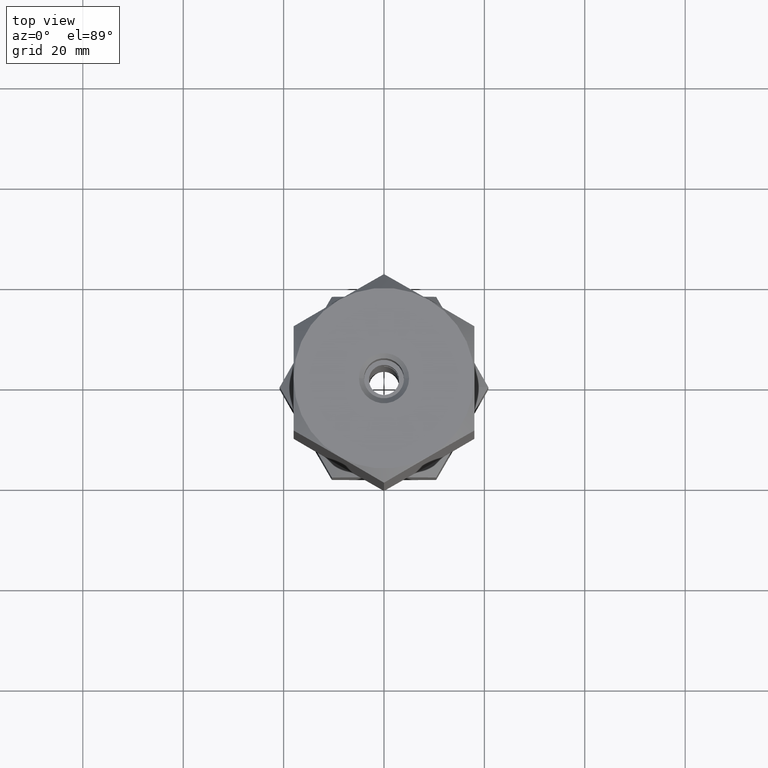
[diagram: clean part render]
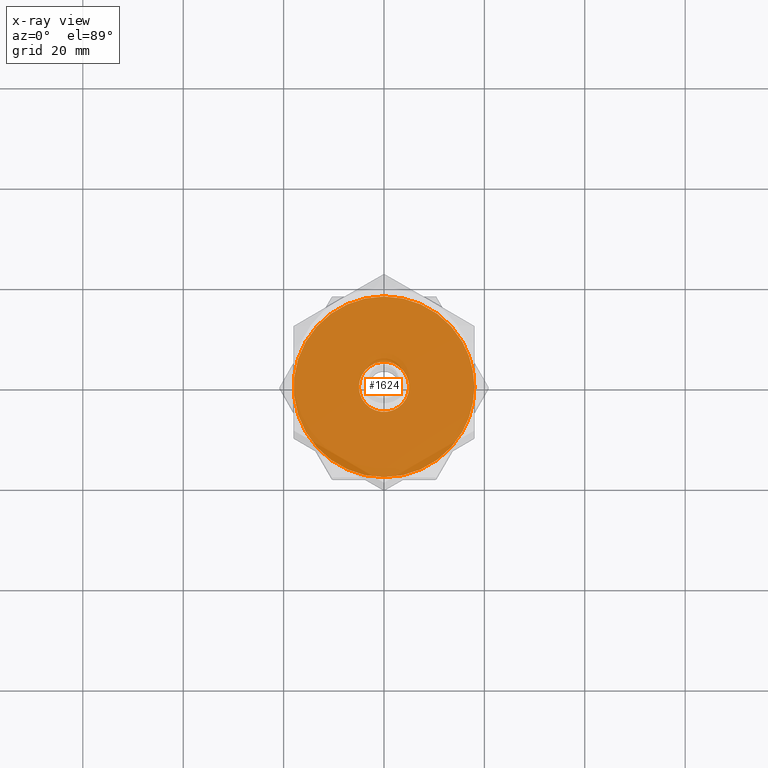
[diagram: x-ray — body ghosted, one internal face saturated and labeled with its STEP entity id]
A machine part, top view, then the same camera in x-ray: the body is ghosted and one INTERNAL B-rep face — a face not visible from any outside direction — is saturated and labeled: STEP entity #1624.
In plain terms, the highlighted planar face has unit normal (0, 0, 1).
Its self-contained STEP definition (entity closure, byte-faithful):
#32 = CIRCLE ( 'NONE', #1539, 18.00000000000000000 ) ;
#37 = AXIS2_PLACEMENT_3D ( 'NONE', #990, #960, #981 ) ;
#67 = AXIS2_PLACEMENT_3D ( 'NONE', #344, #1314, #988 ) ;
#76 = VERTEX_POINT ( 'NONE', #328 ) ;
#141 = DIRECTION ( 'NONE',  ( 0.000000000000000000, 0.000000000000000000, 1.000000000000000000 ) ) ;
#153 = CARTESIAN_POINT ( 'NONE',  ( -15.58845726811989607, 8.999999999999996447, 33.33333333333330017 ) ) ;
#158 = CARTESIAN_POINT ( 'NONE',  ( -5.000000000000000000, 0.000000000000000000, 33.33333333333330017 ) ) ;
#174 = CARTESIAN_POINT ( 'NONE',  ( 5.000000000000000000, 6.123233995736766282E-16, 33.33333333333330017 ) ) ;
#178 = ORIENTED_EDGE ( 'NONE', *, *, #185, .T. ) ;
#181 = CARTESIAN_POINT ( 'NONE',  ( 15.58845726811989429, -9.000000000000001776, 33.33333333333330017 ) ) ;
#185 = EDGE_CURVE ( 'NONE', #1027, #76, #32, .T. ) ;
#190 = EDGE_LOOP ( 'NONE', ( #1840, #1390 ) ) ;
#197 = DIRECTION ( 'NONE',  ( 1.000000000000000000, 0.000000000000000000, 0.000000000000000000 ) ) ;
#277 = DIRECTION ( 'NONE',  ( 1.000000000000000000, 0.000000000000000000, 0.000000000000000000 ) ) ;
#328 = CARTESIAN_POINT ( 'NONE',  ( -15.58845726811989607, -9.000000000000003553, 33.33333333333330017 ) ) ;
#337 = CARTESIAN_POINT ( 'NONE',  ( 0.000000000000000000, 0.000000000000000000, 33.33333333333330017 ) ) ;
#342 = ORIENTED_EDGE ( 'NONE', *, *, #1935, .T. ) ;
#344 = CARTESIAN_POINT ( 'NONE',  ( 0.000000000000000000, 0.000000000000000000, 33.33333333333330017 ) ) ;
#350 = ORIENTED_EDGE ( 'NONE', *, *, #1779, .T. ) ;
#351 = DIRECTION ( 'NONE',  ( 0.000000000000000000, 0.000000000000000000, 1.000000000000000000 ) ) ;
#401 = CARTESIAN_POINT ( 'NONE',  ( 0.000000000000000000, 0.000000000000000000, 33.33333333333330017 ) ) ;
#405 = CIRCLE ( 'NONE', #37, 18.00000000000000000 ) ;
#441 = AXIS2_PLACEMENT_3D ( 'NONE', #1498, #351, #197 ) ;
#491 = CARTESIAN_POINT ( 'NONE',  ( 0.000000000000000000, 0.000000000000000000, 33.33333333333330017 ) ) ;
#516 = CARTESIAN_POINT ( 'NONE',  ( 0.000000000000000000, 0.000000000000000000, 33.33333333333330017 ) ) ;
#522 = CARTESIAN_POINT ( 'NONE',  ( 3.004629197474318851E-15, -18.00000000000000000, 33.33333333333330017 ) ) ;
#613 = CARTESIAN_POINT ( 'NONE',  ( 0.000000000000000000, 0.000000000000000000, 33.33333333333330017 ) ) ;
#660 = EDGE_CURVE ( 'NONE', #1806, #1194, #1340, .T. ) ;
#680 = ORIENTED_EDGE ( 'NONE', *, *, #1163, .T. ) ;
#682 = DIRECTION ( 'NONE',  ( 1.000000000000000000, 0.000000000000000000, 0.000000000000000000 ) ) ;
#683 = EDGE_LOOP ( 'NONE', ( #350, #1913, #870, #680, #178, #342, #1022 ) ) ;
#685 = DIRECTION ( 'NONE',  ( 0.000000000000000000, 0.000000000000000000, 1.000000000000000000 ) ) ;
#696 = AXIS2_PLACEMENT_3D ( 'NONE', #491, #1142, #1771 ) ;
#752 = FACE_BOUND ( 'NONE', #190, .T. ) ;
#801 = CIRCLE ( 'NONE', #696, 5.000000000000000000 ) ;
#857 = DIRECTION ( 'NONE',  ( 0.000000000000000000, 0.000000000000000000, 1.000000000000000000 ) ) ;
#870 = ORIENTED_EDGE ( 'NONE', *, *, #1073, .T. ) ;
#871 = AXIS2_PLACEMENT_3D ( 'NONE', #337, #1414, #2033 ) ;
#914 = VERTEX_POINT ( 'NONE', #1317 ) ;
#932 = CARTESIAN_POINT ( 'NONE',  ( 0.000000000000000000, 0.000000000000000000, 33.33333333333330017 ) ) ;
#945 = AXIS2_PLACEMENT_3D ( 'NONE', #516, #1167, #277 ) ;
#958 = FACE_OUTER_BOUND ( 'NONE', #683, .T. ) ;
#960 = DIRECTION ( 'NONE',  ( 0.000000000000000000, 0.000000000000000000, 1.000000000000000000 ) ) ;
#981 = DIRECTION ( 'NONE',  ( 1.000000000000000000, 0.000000000000000000, 0.000000000000000000 ) ) ;
#988 = DIRECTION ( 'NONE',  ( 1.000000000000000000, 0.000000000000000000, 0.000000000000000000 ) ) ;
#990 = CARTESIAN_POINT ( 'NONE',  ( 0.000000000000000000, 0.000000000000000000, 33.33333333333330017 ) ) ;
#1022 = ORIENTED_EDGE ( 'NONE', *, *, #1113, .T. ) ;
#1027 = VERTEX_POINT ( 'NONE', #153 ) ;
#1045 = EDGE_CURVE ( 'NONE', #1194, #1806, #801, .T. ) ;
#1046 = CIRCLE ( 'NONE', #1671, 18.00000000000000000 ) ;
#1073 = EDGE_CURVE ( 'NONE', #1703, #914, #1308, .T. ) ;
#1095 = DIRECTION ( 'NONE',  ( 0.000000000000000000, 0.000000000000000000, -1.000000000000000000 ) ) ;
#1113 = EDGE_CURVE ( 'NONE', #1149, #1118, #1046, .T. ) ;
#1118 = VERTEX_POINT ( 'NONE', #181 ) ;
#1119 = CIRCLE ( 'NONE', #945, 18.00000000000000000 ) ;
#1137 = VERTEX_POINT ( 'NONE', #1464 ) ;
#1142 = DIRECTION ( 'NONE',  ( 0.000000000000000000, 0.000000000000000000, -1.000000000000000000 ) ) ;
#1149 = VERTEX_POINT ( 'NONE', #522 ) ;
#1163 = EDGE_CURVE ( 'NONE', #914, #1027, #1576, .T. ) ;
#1167 = DIRECTION ( 'NONE',  ( 0.000000000000000000, 0.000000000000000000, 1.000000000000000000 ) ) ;
#1180 = CARTESIAN_POINT ( 'NONE',  ( 15.58845726811989252, 9.000000000000003553, 33.33333333333330017 ) ) ;
#1181 = AXIS2_PLACEMENT_3D ( 'NONE', #932, #141, #1246 ) ;
#1194 = VERTEX_POINT ( 'NONE', #158 ) ;
#1246 = DIRECTION ( 'NONE',  ( 1.000000000000000000, 0.000000000000000000, -0.000000000000000000 ) ) ;
#1308 = CIRCLE ( 'NONE', #871, 18.00000000000000000 ) ;
#1314 = DIRECTION ( 'NONE',  ( 0.000000000000000000, 0.000000000000000000, 1.000000000000000000 ) ) ;
#1317 = CARTESIAN_POINT ( 'NONE',  ( 0.000000000000000000, 18.00000000000000000, 33.33333333333330017 ) ) ;
#1337 = DIRECTION ( 'NONE',  ( 1.000000000000000000, 0.000000000000000000, 0.000000000000000000 ) ) ;
#1340 = CIRCLE ( 'NONE', #1833, 5.000000000000000000 ) ;
#1390 = ORIENTED_EDGE ( 'NONE', *, *, #660, .T. ) ;
#1402 = PLANE ( 'NONE',  #1181 ) ;
#1414 = DIRECTION ( 'NONE',  ( 0.000000000000000000, 0.000000000000000000, 1.000000000000000000 ) ) ;
#1464 = CARTESIAN_POINT ( 'NONE',  ( 18.00000000000000000, 0.000000000000000000, 33.33333333333330017 ) ) ;
#1498 = CARTESIAN_POINT ( 'NONE',  ( 0.000000000000000000, 0.000000000000000000, 33.33333333333330017 ) ) ;
#1539 = AXIS2_PLACEMENT_3D ( 'NONE', #401, #685, #1337 ) ;
#1576 = CIRCLE ( 'NONE', #67, 18.00000000000000000 ) ;
#1620 = CARTESIAN_POINT ( 'NONE',  ( 0.000000000000000000, 0.000000000000000000, 33.33333333333330017 ) ) ;
#1624 = ADVANCED_FACE ( 'NONE', ( #752, #958 ), #1402, .T. ) ;
#1671 = AXIS2_PLACEMENT_3D ( 'NONE', #1620, #857, #682 ) ;
#1703 = VERTEX_POINT ( 'NONE', #1180 ) ;
#1710 = CIRCLE ( 'NONE', #441, 18.00000000000000000 ) ;
#1771 = DIRECTION ( 'NONE',  ( -1.000000000000000000, 0.000000000000000000, 0.000000000000000000 ) ) ;
#1779 = EDGE_CURVE ( 'NONE', #1118, #1137, #405, .T. ) ;
#1806 = VERTEX_POINT ( 'NONE', #174 ) ;
#1833 = AXIS2_PLACEMENT_3D ( 'NONE', #613, #1095, #2037 ) ;
#1840 = ORIENTED_EDGE ( 'NONE', *, *, #1045, .T. ) ;
#1913 = ORIENTED_EDGE ( 'NONE', *, *, #1987, .T. ) ;
#1935 = EDGE_CURVE ( 'NONE', #76, #1149, #1710, .T. ) ;
#1987 = EDGE_CURVE ( 'NONE', #1137, #1703, #1119, .T. ) ;
#2033 = DIRECTION ( 'NONE',  ( 1.000000000000000000, 0.000000000000000000, 0.000000000000000000 ) ) ;
#2037 = DIRECTION ( 'NONE',  ( -1.000000000000000000, 0.000000000000000000, 0.000000000000000000 ) ) ;